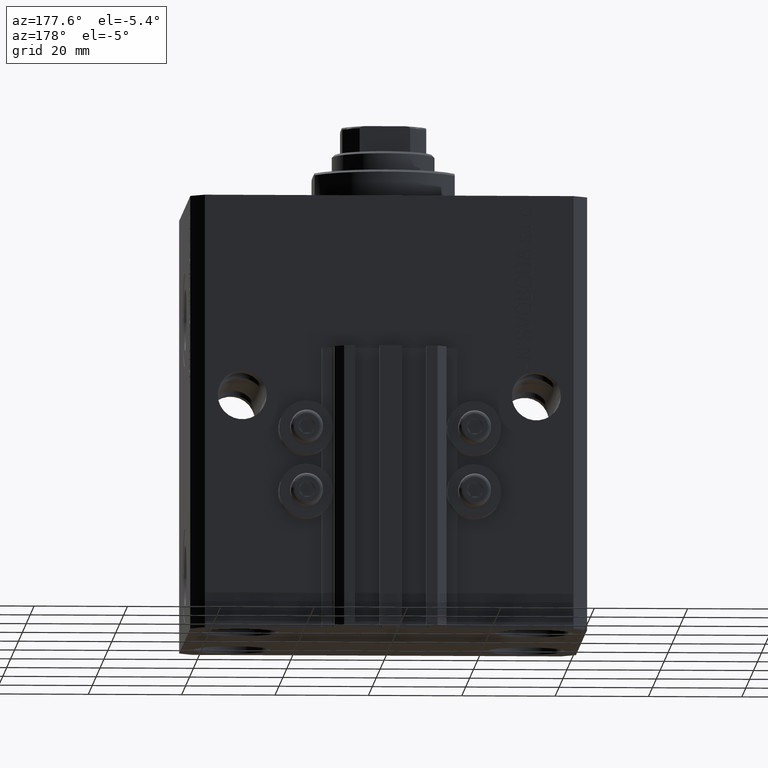
[diagram: clean part render]
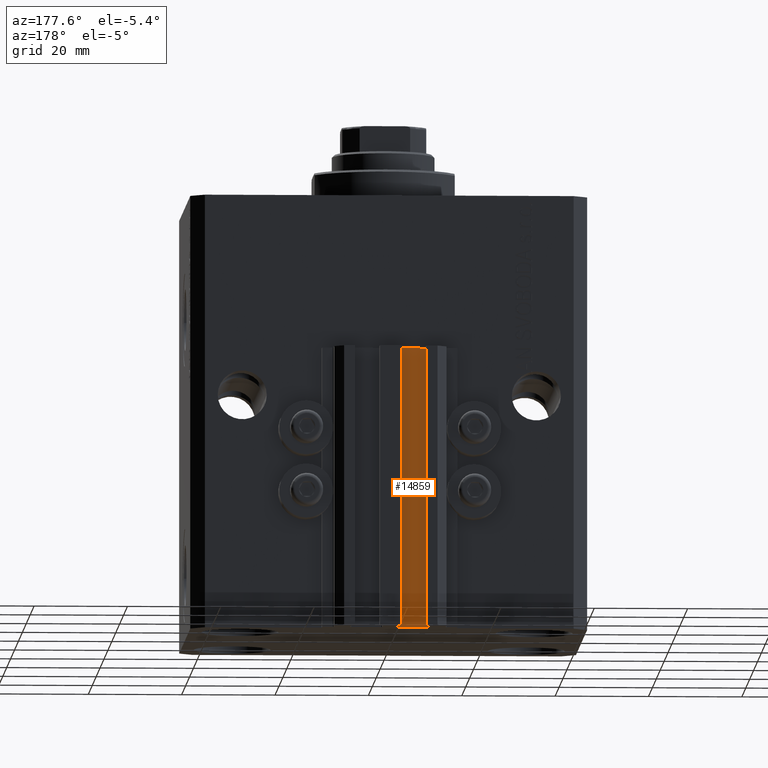
[diagram: same view with one face highlighted and labeled with its STEP entity id]
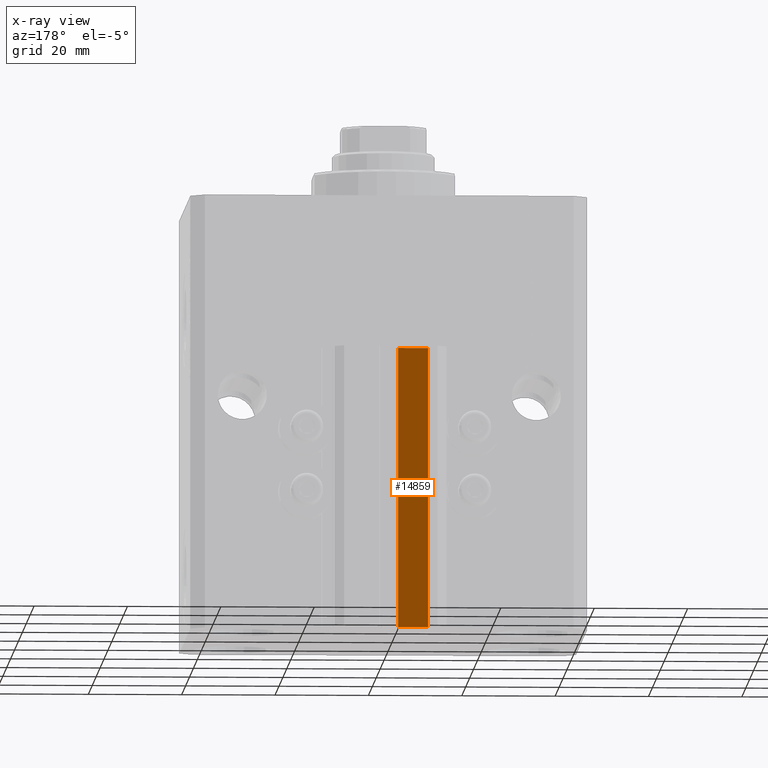
[diagram: x-ray of the same camera — body ghosted, the highlighted face saturated]
A machine part, auxiliary view. The second image highlights one B-rep face of the part: STEP entity #14859.
The next image is the same camera in x-ray: the body ghosted, the highlighted face saturated — about 0% of this face is hidden behind the body in this view.
In plain terms, the highlighted planar face has unit normal (0, 1, 0).
Its self-contained STEP definition (entity closure, byte-faithful):
#1421 = VERTEX_POINT ( 'NONE', #7863 ) ;
#5012 = EDGE_CURVE ( 'NONE', #30762, #1421, #33025, .T. ) ;
#6348 = EDGE_CURVE ( 'NONE', #1421, #41334, #13197, .T. ) ;
#6654 = DIRECTION ( 'NONE',  ( -1.000000000000000000, 0.000000000000000000, 0.000000000000000000 ) ) ;
#7863 = CARTESIAN_POINT ( 'NONE',  ( -8.199999999999997513, 33.50000000000000000, -93.00000000000000000 ) ) ;
#8620 = LINE ( 'NONE', #20193, #29185 ) ;
#10060 = ORIENTED_EDGE ( 'NONE', *, *, #46278, .F. ) ;
#13197 = LINE ( 'NONE', #38477, #24399 ) ;
#14730 = CARTESIAN_POINT ( 'NONE',  ( -1.800000000000000933, 33.50000000000000000, -93.00000000000000000 ) ) ;
#14859 = ADVANCED_FACE ( 'NONE', ( #22652 ), #16573, .T. ) ;
#16028 = VERTEX_POINT ( 'NONE', #41025 ) ;
#16341 = DIRECTION ( 'NONE',  ( 0.000000000000000000, 0.000000000000000000, 1.000000000000000000 ) ) ;
#16573 = PLANE ( 'NONE',  #21582 ) ;
#16703 = EDGE_CURVE ( 'NONE', #16028, #41334, #21566, .T. ) ;
#16927 = VECTOR ( 'NONE', #6654, 1000.000000000000000 ) ;
#18705 = EDGE_LOOP ( 'NONE', ( #29574, #10060, #29347, #32497 ) ) ;
#20193 = CARTESIAN_POINT ( 'NONE',  ( -1.800000000000000933, 33.50000000000000000, -93.00000000000000000 ) ) ;
#21566 = LINE ( 'NONE', #39393, #16927 ) ;
#21582 = AXIS2_PLACEMENT_3D ( 'NONE', #29883, #40723, #30124 ) ;
#22031 = VECTOR ( 'NONE', #39769, 1000.000000000000000 ) ;
#22652 = FACE_OUTER_BOUND ( 'NONE', #18705, .T. ) ;
#24399 = VECTOR ( 'NONE', #42572, 1000.000000000000000 ) ;
#29185 = VECTOR ( 'NONE', #16341, 1000.000000000000000 ) ;
#29347 = ORIENTED_EDGE ( 'NONE', *, *, #5012, .T. ) ;
#29574 = ORIENTED_EDGE ( 'NONE', *, *, #16703, .F. ) ;
#29779 = CARTESIAN_POINT ( 'NONE',  ( -8.199999999999997513, 33.50000000000000000, -33.00000000000000000 ) ) ;
#29883 = CARTESIAN_POINT ( 'NONE',  ( -1.800000000000000933, 33.50000000000000000, -93.00000000000000000 ) ) ;
#30124 = DIRECTION ( 'NONE',  ( 0.000000000000000000, 0.000000000000000000, 1.000000000000000000 ) ) ;
#30762 = VERTEX_POINT ( 'NONE', #35893 ) ;
#32497 = ORIENTED_EDGE ( 'NONE', *, *, #6348, .T. ) ;
#33025 = LINE ( 'NONE', #14730, #22031 ) ;
#35893 = CARTESIAN_POINT ( 'NONE',  ( -1.800000000000000933, 33.50000000000000000, -93.00000000000000000 ) ) ;
#38477 = CARTESIAN_POINT ( 'NONE',  ( -8.199999999999997513, 33.50000000000000000, -93.00000000000000000 ) ) ;
#39393 = CARTESIAN_POINT ( 'NONE',  ( -1.800000000000000933, 33.50000000000000000, -33.00000000000000000 ) ) ;
#39769 = DIRECTION ( 'NONE',  ( -1.000000000000000000, 0.000000000000000000, 0.000000000000000000 ) ) ;
#40723 = DIRECTION ( 'NONE',  ( 0.000000000000000000, 1.000000000000000000, -0.000000000000000000 ) ) ;
#41025 = CARTESIAN_POINT ( 'NONE',  ( -1.800000000000000933, 33.50000000000000000, -33.00000000000000000 ) ) ;
#41334 = VERTEX_POINT ( 'NONE', #29779 ) ;
#42572 = DIRECTION ( 'NONE',  ( 0.000000000000000000, 0.000000000000000000, 1.000000000000000000 ) ) ;
#46278 = EDGE_CURVE ( 'NONE', #30762, #16028, #8620, .T. ) ;